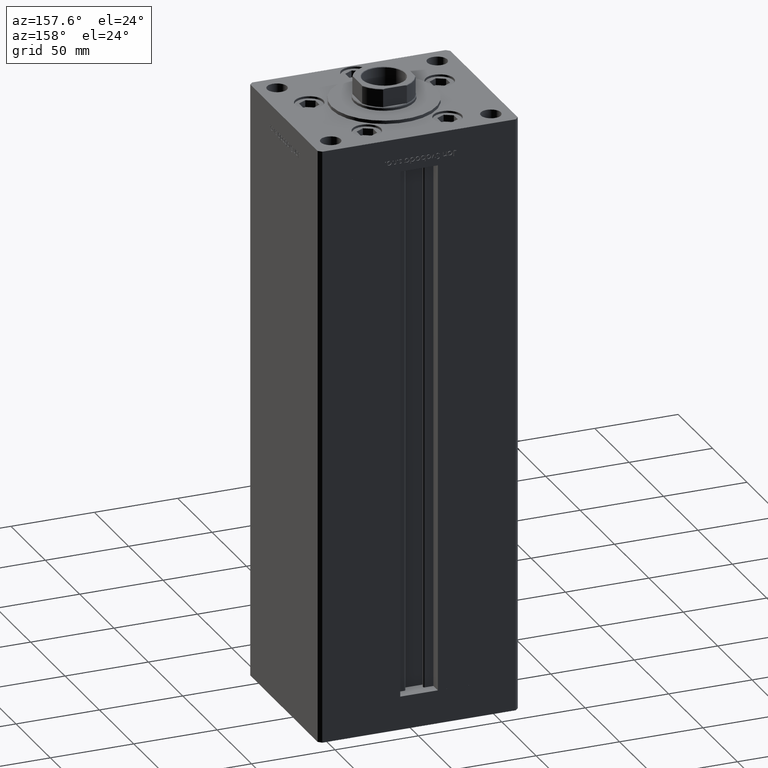
[diagram: clean part render]
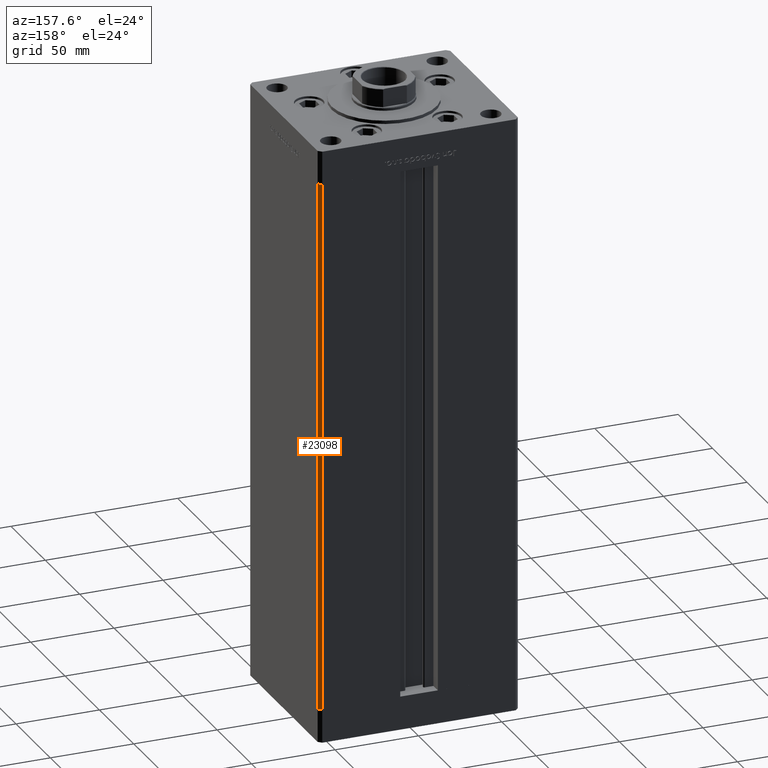
[diagram: same view with one face highlighted and labeled with its STEP entity id]
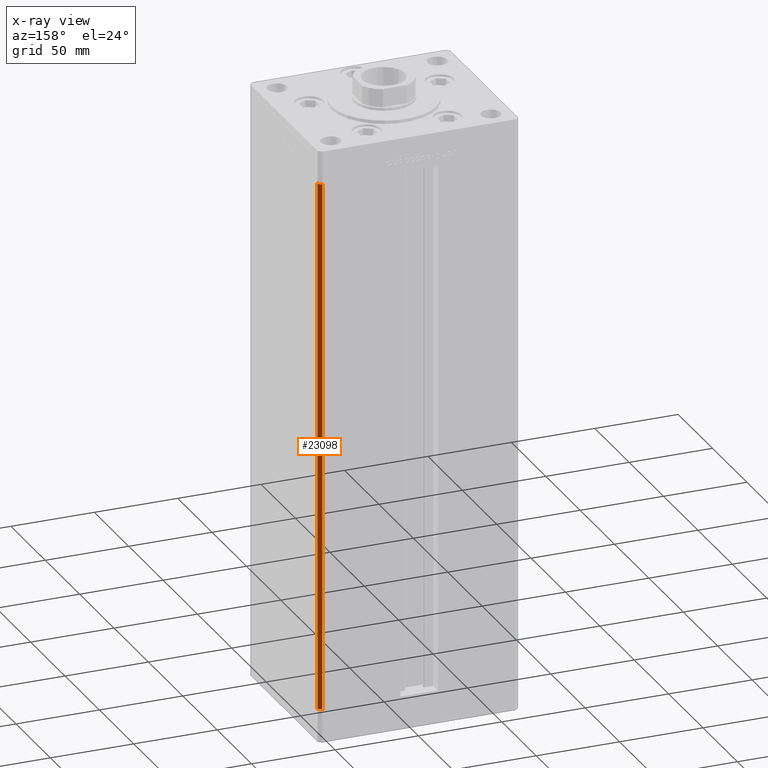
[diagram: x-ray of the same camera — body ghosted, the highlighted face saturated]
A machine part, auxiliary view. The second image highlights one B-rep face of the part: STEP entity #23098.
The next image is the same camera in x-ray: the body ghosted, the highlighted face saturated — about 0% of this face is hidden behind the body in this view.
In plain terms, the highlighted planar face has unit normal (0.7071, 0.7071, 0).
Its self-contained STEP definition (entity closure, byte-faithful):
#64 = CARTESIAN_POINT ( 'NONE',  ( 57.99999999999999289, 51.00000000000000711, 318.5000000000000000 ) ) ;
#3252 = ORIENTED_EDGE ( 'NONE', *, *, #43262, .F. ) ;
#5062 = VERTEX_POINT ( 'NONE', #28060 ) ;
#5671 = VECTOR ( 'NONE', #22954, 1000.000000000000000 ) ;
#8414 = VECTOR ( 'NONE', #14633, 1000.000000000000000 ) ;
#13100 = DIRECTION ( 'NONE',  ( -0.7071067811865500152, 0.7071067811865451302, 0.000000000000000000 ) ) ;
#13361 = CARTESIAN_POINT ( 'NONE',  ( 57.99999999999999289, 51.00000000000000711, 0.000000000000000000 ) ) ;
#13650 = VERTEX_POINT ( 'NONE', #36827 ) ;
#14633 = DIRECTION ( 'NONE',  ( -0.000000000000000000, -0.000000000000000000, -1.000000000000000000 ) ) ;
#15407 = CARTESIAN_POINT ( 'NONE',  ( 57.99999999999999289, 51.00000000000000711, 318.5000000000000000 ) ) ;
#16132 = AXIS2_PLACEMENT_3D ( 'NONE', #28660, #17081, #13100 ) ;
#17081 = DIRECTION ( 'NONE',  ( 0.7071067811865451302, 0.7071067811865500152, -0.000000000000000000 ) ) ;
#17326 = VECTOR ( 'NONE', #30478, 1000.000000000000114 ) ;
#17818 = LINE ( 'NONE', #34916, #8414 ) ;
#17897 = EDGE_CURVE ( 'NONE', #5062, #13650, #17818, .T. ) ;
#18104 = LINE ( 'NONE', #13361, #17326 ) ;
#20503 = FACE_OUTER_BOUND ( 'NONE', #48433, .T. ) ;
#22954 = DIRECTION ( 'NONE',  ( -0.000000000000000000, -0.000000000000000000, -1.000000000000000000 ) ) ;
#23098 = ADVANCED_FACE ( 'NONE', ( #20503 ), #24190, .T. ) ;
#24190 = PLANE ( 'NONE',  #16132 ) ;
#24335 = ORIENTED_EDGE ( 'NONE', *, *, #48850, .F. ) ;
#28060 = CARTESIAN_POINT ( 'NONE',  ( 60.00000000000001421, 49.00000000000000000, 318.5000000000000000 ) ) ;
#28660 = CARTESIAN_POINT ( 'NONE',  ( 57.99999999999999289, 51.00000000000000711, 318.5000000000000000 ) ) ;
#29656 = VERTEX_POINT ( 'NONE', #15407 ) ;
#30478 = DIRECTION ( 'NONE',  ( 0.7071067811865500152, -0.7071067811865451302, 0.000000000000000000 ) ) ;
#31839 = ORIENTED_EDGE ( 'NONE', *, *, #43627, .T. ) ;
#34916 = CARTESIAN_POINT ( 'NONE',  ( 60.00000000000001421, 49.00000000000000000, 318.5000000000000000 ) ) ;
#35815 = VECTOR ( 'NONE', #40651, 1000.000000000000114 ) ;
#35837 = LINE ( 'NONE', #51663, #5671 ) ;
#36827 = CARTESIAN_POINT ( 'NONE',  ( 60.00000000000001421, 49.00000000000000000, 0.000000000000000000 ) ) ;
#40651 = DIRECTION ( 'NONE',  ( 0.7071067811865500152, -0.7071067811865451302, 0.000000000000000000 ) ) ;
#43262 = EDGE_CURVE ( 'NONE', #49482, #13650, #18104, .T. ) ;
#43627 = EDGE_CURVE ( 'NONE', #29656, #5062, #44603, .T. ) ;
#44603 = LINE ( 'NONE', #64, #35815 ) ;
#46305 = CARTESIAN_POINT ( 'NONE',  ( 57.99999999999999289, 51.00000000000000711, 0.000000000000000000 ) ) ;
#46754 = ORIENTED_EDGE ( 'NONE', *, *, #17897, .T. ) ;
#48433 = EDGE_LOOP ( 'NONE', ( #3252, #24335, #31839, #46754 ) ) ;
#48850 = EDGE_CURVE ( 'NONE', #29656, #49482, #35837, .T. ) ;
#49482 = VERTEX_POINT ( 'NONE', #46305 ) ;
#51663 = CARTESIAN_POINT ( 'NONE',  ( 57.99999999999999289, 51.00000000000000711, 318.5000000000000000 ) ) ;